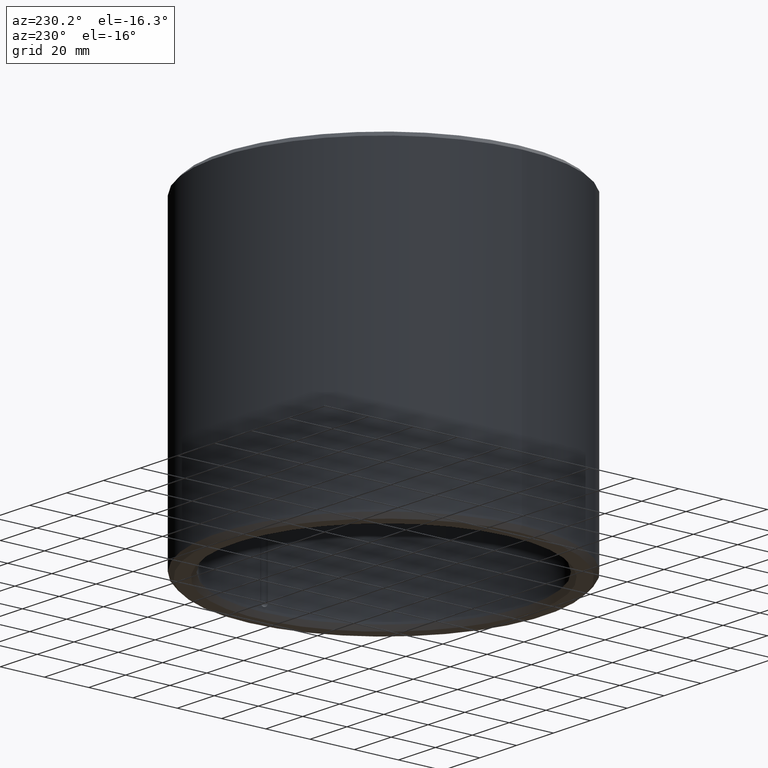
[diagram: clean part render]
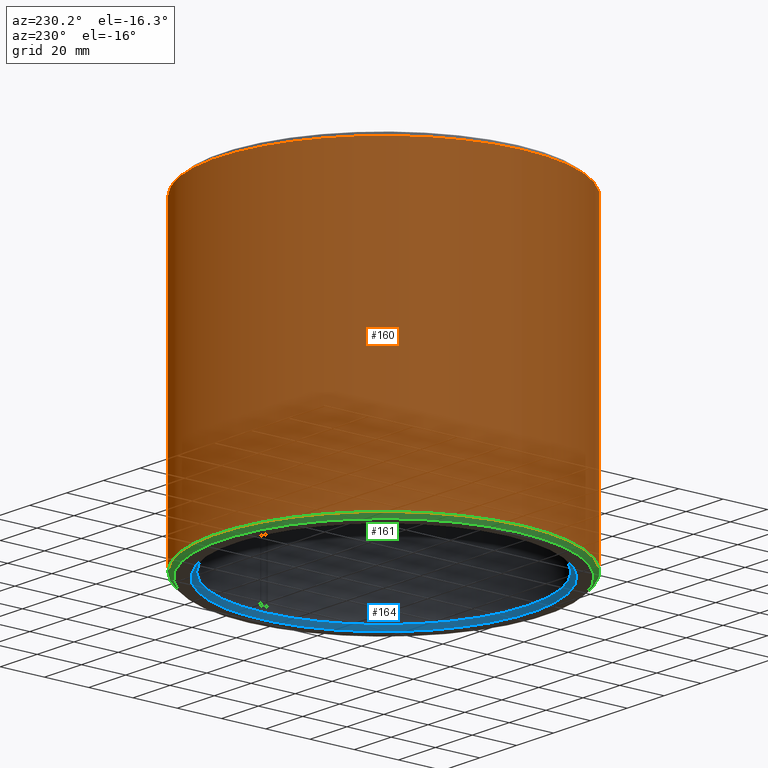
[diagram: same view with three faces highlighted in distinct colors, each labeled with its STEP entity id]
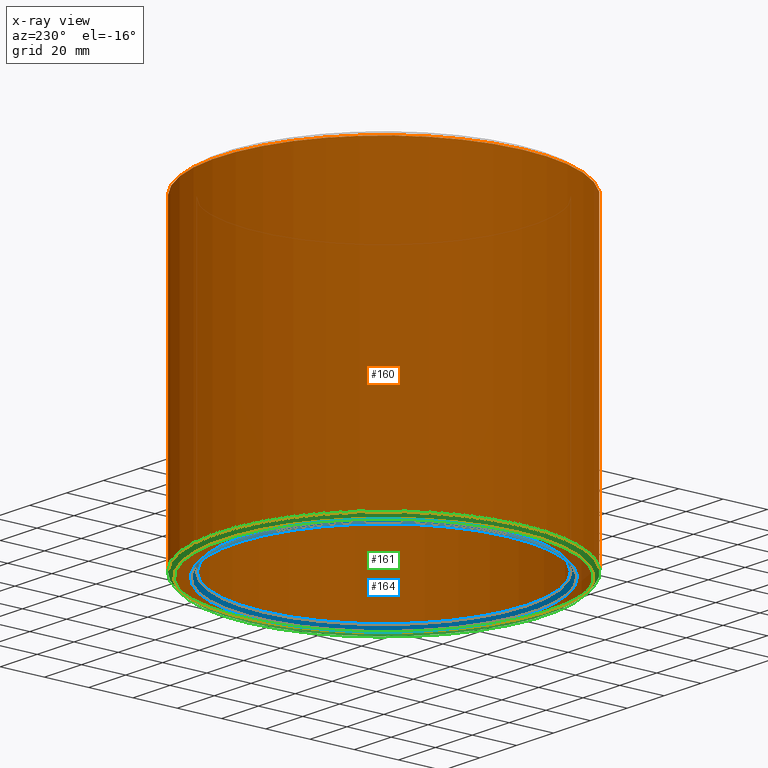
[diagram: x-ray of the same camera — body ghosted, the three highlighted faces saturated]
A machine part, auxiliary view with three faces highlighted in distinct colors.
The next image is the same camera in x-ray (body ghosted, the three faces saturated) — at least one of them is partly hidden behind the body in this view.
Their STEP definitions:

[orange] entity #160 — the highlighted cylindrical surface (bore or boss wall) has radius 75 mm, axis along (-0, 0, -1).
#160=ADVANCED_FACE('',(#186,#187),#188,.T.);
#186=FACE_OUTER_BOUND('',#4071,.T.);
#187=FACE_OUTER_BOUND('',#4072,.T.);
#188=CYLINDRICAL_SURFACE('',#4073,0.075);
#4071=EDGE_LOOP('',(#7981));
#4072=EDGE_LOOP('',(#7982));
#4073=AXIS2_PLACEMENT_3D('',#7983,#7984,#7985);
#7981=ORIENTED_EDGE('',*,*,#8026,.T.);
#7982=ORIENTED_EDGE('',*,*,#8027,.F.);
#7983=CARTESIAN_POINT('',(0.0,0.0,-1.0842021724855E-019));
#7984=DIRECTION('',(0.0,-6.12323399573677E-017,-1.0));
#7985=DIRECTION('',(0.0,1.0,-6.12323399573677E-017));
#8026=EDGE_CURVE('',#8058,#8058,#8059,.T.);
#8027=EDGE_CURVE('',#8060,#8060,#8061,.T.);
#8058=VERTEX_POINT('',#8330);
#8059=CIRCLE('',#8331,0.075);
#8060=VERTEX_POINT('',#8332);
#8061=CIRCLE('',#8333,0.075);
#8330=CARTESIAN_POINT('',(0.0,0.075,0.138));
#8331=AXIS2_PLACEMENT_3D('',#8366,#8367,#8368);
#8332=CARTESIAN_POINT('',(0.0,0.075,0.002));
#8333=AXIS2_PLACEMENT_3D('',#8369,#8370,#8371);
#8366=CARTESIAN_POINT('',(0.0,6.93889390390723E-018,0.138));
#8367=DIRECTION('',(0.0,-6.12323399573677E-017,-1.0));
#8368=DIRECTION('',(0.0,1.0,-6.12323399573677E-017));
#8369=CARTESIAN_POINT('',(0.0,0.0,0.002));
#8370=DIRECTION('',(0.0,-6.12323399573677E-017,-1.0));
#8371=DIRECTION('',(0.0,1.0,-6.12323399573677E-017));

[blue] entity #164 — the highlighted conical surface has half-angle 45 deg.
#164=ADVANCED_FACE('',(#198,#199),#200,.F.);
#198=FACE_OUTER_BOUND('',#4083,.T.);
#199=FACE_BOUND('',#4084,.T.);
#200=CONICAL_SURFACE('',#4085,0.065,0.785398163397449);
#4083=EDGE_LOOP('',(#8001));
#4084=EDGE_LOOP('',(#8002));
#4085=AXIS2_PLACEMENT_3D('',#8003,#8004,#8005);
#8001=ORIENTED_EDGE('',*,*,#8029,.T.);
#8002=ORIENTED_EDGE('',*,*,#8021,.F.);
#8003=CARTESIAN_POINT('',(0.0,0.0,0.002));
#8004=DIRECTION('',(0.0,-6.12323399573677E-017,-1.0));
#8005=DIRECTION('',(0.0,1.0,-6.12323399573677E-017));
#8021=EDGE_CURVE('',#8049,#8049,#8050,.T.);
#8029=EDGE_CURVE('',#8064,#8064,#8065,.T.);
#8049=VERTEX_POINT('',#8236);
#8050=CIRCLE('',#8237,0.065);
#8064=VERTEX_POINT('',#8336);
#8065=CIRCLE('',#8337,0.067);
#8236=CARTESIAN_POINT('',(0.0,0.065,0.002));
#8237=AXIS2_PLACEMENT_3D('',#8354,#8355,#8356);
#8336=CARTESIAN_POINT('',(0.0,0.067,2.34241912798384E-019));
#8337=AXIS2_PLACEMENT_3D('',#8375,#8376,#8377);
#8354=CARTESIAN_POINT('',(0.0,0.0,0.002));
#8355=DIRECTION('',(0.0,-6.12323399573677E-017,-1.0));
#8356=DIRECTION('',(0.0,1.0,-6.12323399573677E-017));
#8375=CARTESIAN_POINT('',(0.0,0.0,4.33680868994202E-018));
#8376=DIRECTION('',(0.0,-6.12323399573677E-017,-1.0));
#8377=DIRECTION('',(0.0,1.0,-6.12323399573677E-017));

[green] entity #161 — the highlighted conical surface has half-angle 45 deg.
#161=ADVANCED_FACE('',(#189,#190),#191,.T.);
#189=FACE_OUTER_BOUND('',#4074,.T.);
#190=FACE_BOUND('',#4075,.T.);
#191=CONICAL_SURFACE('',#4076,0.073,0.78539816339745);
#4074=EDGE_LOOP('',(#7986));
#4075=EDGE_LOOP('',(#7987));
#4076=AXIS2_PLACEMENT_3D('',#7988,#7989,#7990);
#7986=ORIENTED_EDGE('',*,*,#8027,.T.);
#7987=ORIENTED_EDGE('',*,*,#8028,.F.);
#7988=CARTESIAN_POINT('',(0.0,0.0,5.09575021068187E-018));
#7989=DIRECTION('',(-0.0,6.12323399573677E-017,1.0));
#7990=DIRECTION('',(0.0,-1.0,6.12323399573677E-017));
#8027=EDGE_CURVE('',#8060,#8060,#8061,.T.);
#8028=EDGE_CURVE('',#8062,#8062,#8063,.T.);
#8060=VERTEX_POINT('',#8332);
#8061=CIRCLE('',#8333,0.075);
#8062=VERTEX_POINT('',#8334);
#8063=CIRCLE('',#8335,0.073);
#8332=CARTESIAN_POINT('',(0.0,0.075,0.002));
#8333=AXIS2_PLACEMENT_3D('',#8369,#8370,#8371);
#8334=CARTESIAN_POINT('',(0.0,0.073,6.25789393794031E-019));
#8335=AXIS2_PLACEMENT_3D('',#8372,#8373,#8374);
#8369=CARTESIAN_POINT('',(0.0,0.0,0.002));
#8370=DIRECTION('',(0.0,-6.12323399573677E-017,-1.0));
#8371=DIRECTION('',(0.0,1.0,-6.12323399573677E-017));
#8372=CARTESIAN_POINT('',(0.0,0.0,5.09575021068187E-018));
#8373=DIRECTION('',(0.0,-6.12323399573677E-017,-1.0));
#8374=DIRECTION('',(0.0,1.0,-6.12323399573677E-017));